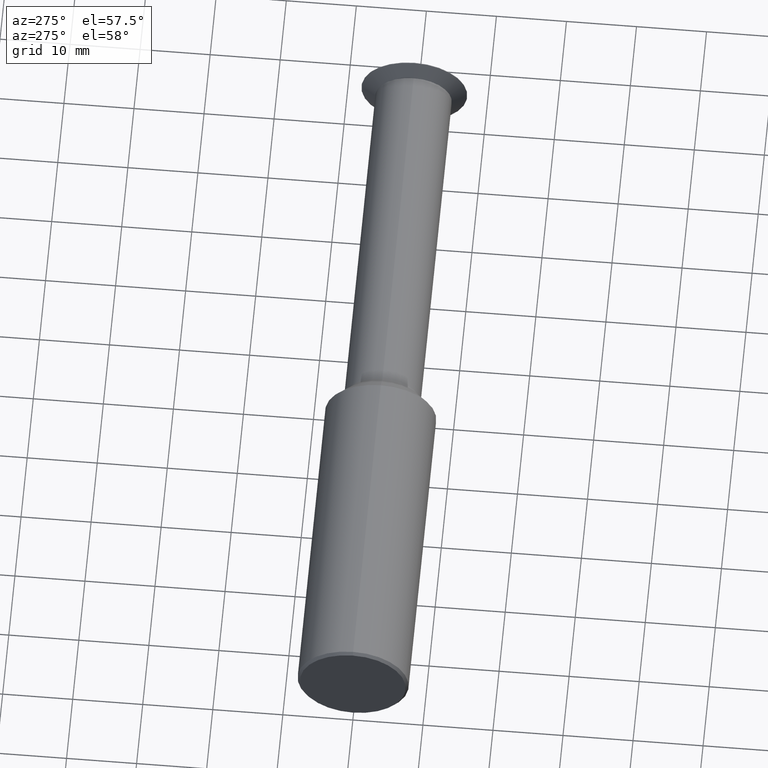
[diagram: clean part render]
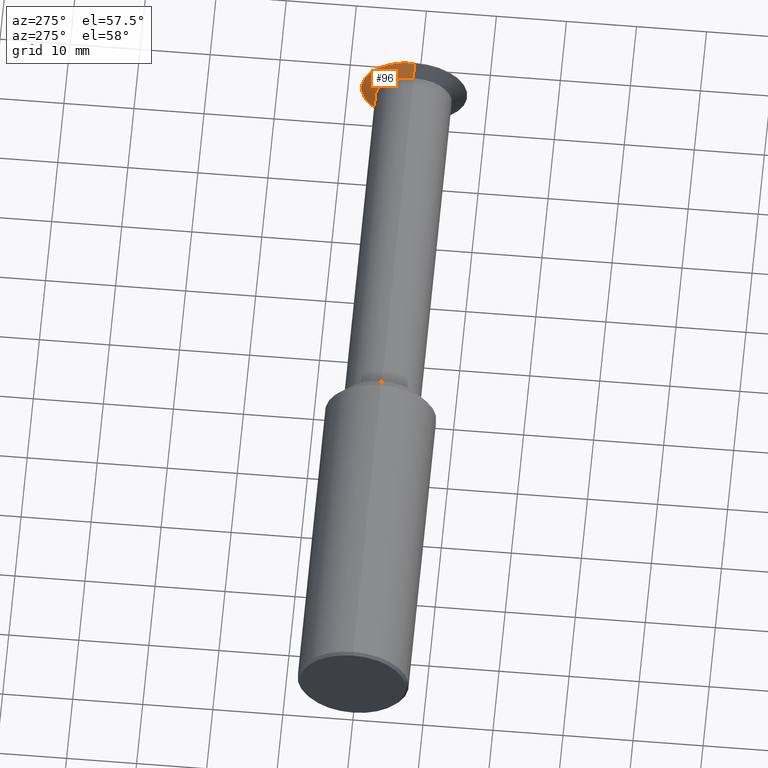
[diagram: same view with one face highlighted and labeled with its STEP entity id]
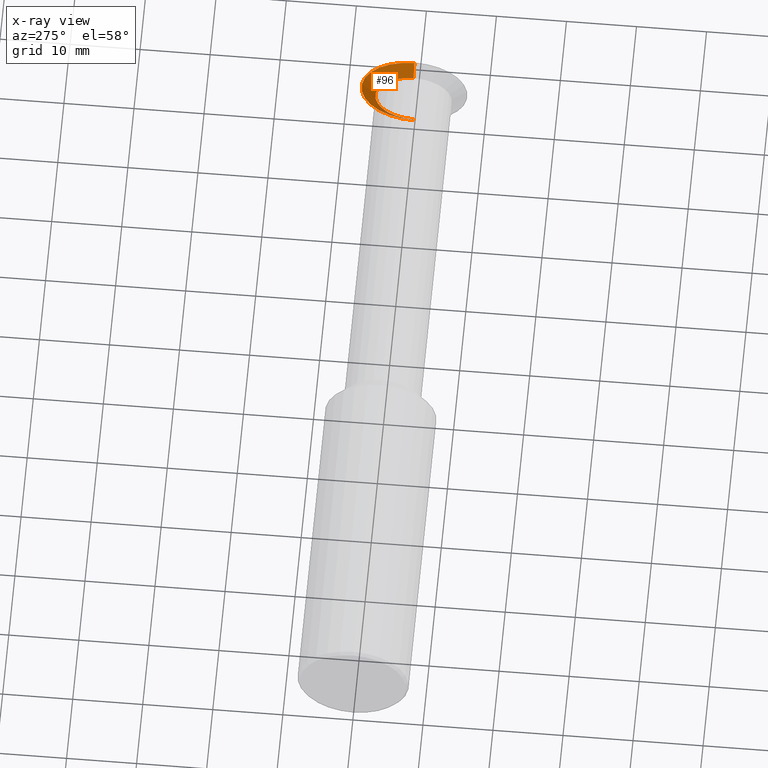
[diagram: x-ray of the same camera — body ghosted, the highlighted face saturated]
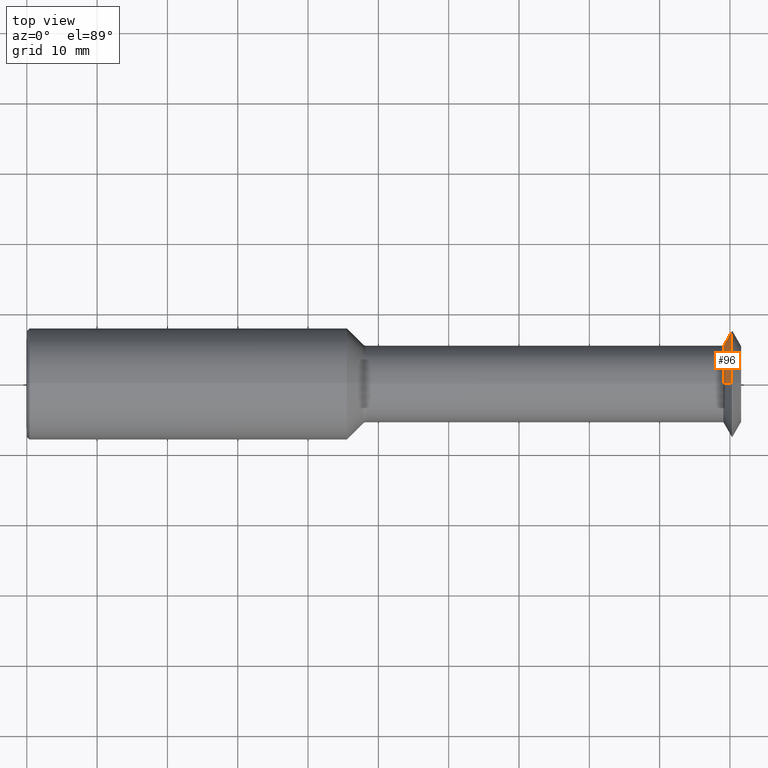
[diagram: same view with one face highlighted and labeled with its STEP entity id]
A machine part, auxiliary view. The second image highlights one B-rep face of the part: STEP entity #96.
The next image is the same camera in x-ray: the body ghosted, the highlighted face saturated — about 4% of this face is hidden behind the body in this view.
A second angle (top view) of the same face is appended — the face is thin or edge-on in the first view.
In plain terms, the highlighted conical surface has half-angle 60.15 deg.
Its self-contained STEP definition (entity closure, byte-faithful):
#16 = CARTESIAN_POINT ( 'NONE',  ( 3.947934553538009705, 0.0000000000000000000, 0.2974999999999992650 ) ) ;
#25 = CARTESIAN_POINT ( 'NONE',  ( 3.947934553538009705, 3.643324227463366491E-17, 0.2974999999999992650 ) ) ;
#46 = AXIS2_PLACEMENT_3D ( 'NONE', #64, #394, #52 ) ;
#52 = DIRECTION ( 'NONE',  ( 0.0000000000000000000, 0.0000000000000000000, 1.000000000000000000 ) ) ;
#62 = CARTESIAN_POINT ( 'NONE',  ( 3.947934553538009705, 0.0000000000000000000, -0.2974999999999992650 ) ) ;
#64 = CARTESIAN_POINT ( 'NONE',  ( 3.947934553538009705, 0.0000000000000000000, 0.0000000000000000000 ) ) ;
#75 = VECTOR ( 'NONE', #282, 39.37007874015748143 ) ;
#93 = EDGE_CURVE ( 'NONE', #397, #227, #292, .T. ) ;
#96 = ADVANCED_FACE ( 'NONE', ( #424 ), #452, .T. ) ;
#97 = VERTEX_POINT ( 'NONE', #485 ) ;
#119 = CARTESIAN_POINT ( 'NONE',  ( 3.900590701688721573, 3.138157422815083488E-17, 0.2149999999999992473 ) ) ;
#134 = ORIENTED_EDGE ( 'NONE', *, *, #305, .T. ) ;
#148 = DIRECTION ( 'NONE',  ( 1.000000000000000000, 0.0000000000000000000, 0.0000000000000000000 ) ) ;
#153 = VECTOR ( 'NONE', #443, 39.37007874015748143 ) ;
#185 = EDGE_LOOP ( 'NONE', ( #334, #134, #430, #228 ) ) ;
#200 = CARTESIAN_POINT ( 'NONE',  ( 3.947934553538009705, 0.0000000000000000000, 0.0000000000000000000 ) ) ;
#215 = DIRECTION ( 'NONE',  ( 0.0000000000000000000, 0.0000000000000000000, -1.000000000000000000 ) ) ;
#227 = VERTEX_POINT ( 'NONE', #460 ) ;
#228 = ORIENTED_EDGE ( 'NONE', *, *, #448, .F. ) ;
#232 = LINE ( 'NONE', #62, #153 ) ;
#240 = LINE ( 'NONE', #25, #75 ) ;
#263 = AXIS2_PLACEMENT_3D ( 'NONE', #200, #148, #215 ) ;
#279 = VERTEX_POINT ( 'NONE', #119 ) ;
#282 = DIRECTION ( 'NONE',  ( 0.4977310399126166907, 1.062174661273173415E-16, 0.8673314314075705189 ) ) ;
#292 = CIRCLE ( 'NONE', #46, 0.2974999999999992650 ) ;
#305 = EDGE_CURVE ( 'NONE', #279, #397, #240, .T. ) ;
#334 = ORIENTED_EDGE ( 'NONE', *, *, #407, .F. ) ;
#342 = AXIS2_PLACEMENT_3D ( 'NONE', #343, #447, #415 ) ;
#343 = CARTESIAN_POINT ( 'NONE',  ( 3.900590701688721573, 0.0000000000000000000, 0.0000000000000000000 ) ) ;
#394 = DIRECTION ( 'NONE',  ( -1.000000000000000000, -0.0000000000000000000, -0.0000000000000000000 ) ) ;
#397 = VERTEX_POINT ( 'NONE', #16 ) ;
#407 = EDGE_CURVE ( 'NONE', #279, #97, #477, .T. ) ;
#415 = DIRECTION ( 'NONE',  ( 0.0000000000000000000, 0.0000000000000000000, 1.000000000000000000 ) ) ;
#424 = FACE_OUTER_BOUND ( 'NONE', #185, .T. ) ;
#430 = ORIENTED_EDGE ( 'NONE', *, *, #93, .T. ) ;
#443 = DIRECTION ( 'NONE',  ( 0.4977310399126166907, 0.0000000000000000000, -0.8673314314075705189 ) ) ;
#447 = DIRECTION ( 'NONE',  ( -1.000000000000000000, -0.0000000000000000000, -0.0000000000000000000 ) ) ;
#448 = EDGE_CURVE ( 'NONE', #97, #227, #232, .T. ) ;
#452 = CONICAL_SURFACE ( 'NONE', #263, 0.2974999999999992650, 1.049815545074584078 ) ;
#460 = CARTESIAN_POINT ( 'NONE',  ( 3.947934553538009705, 3.643324227463366491E-17, -0.2974999999999992650 ) ) ;
#477 = CIRCLE ( 'NONE', #342, 0.2149999999999992473 ) ;
#485 = CARTESIAN_POINT ( 'NONE',  ( 3.900590701688721573, 0.0000000000000000000, -0.2149999999999992473 ) ) ;